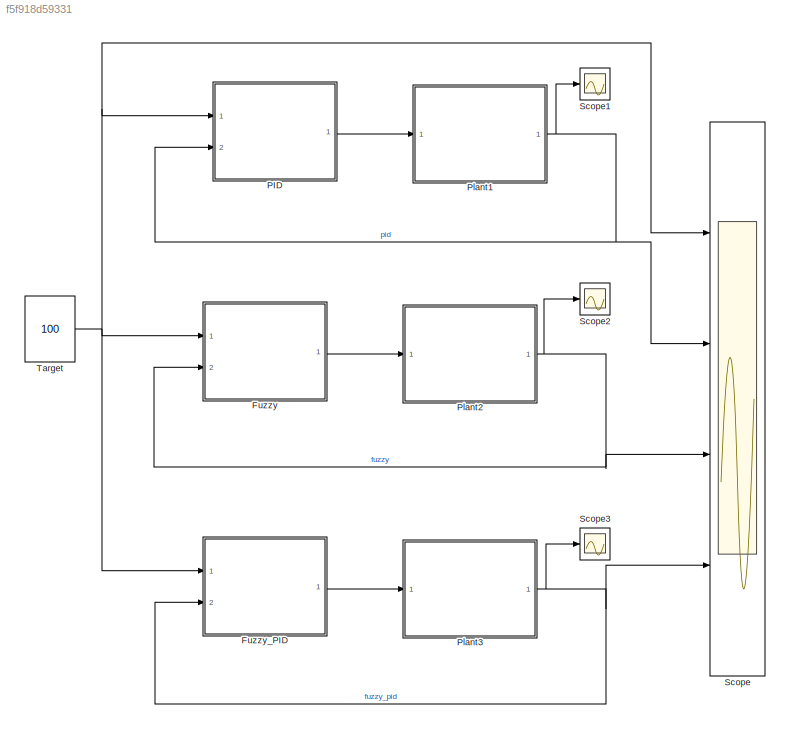
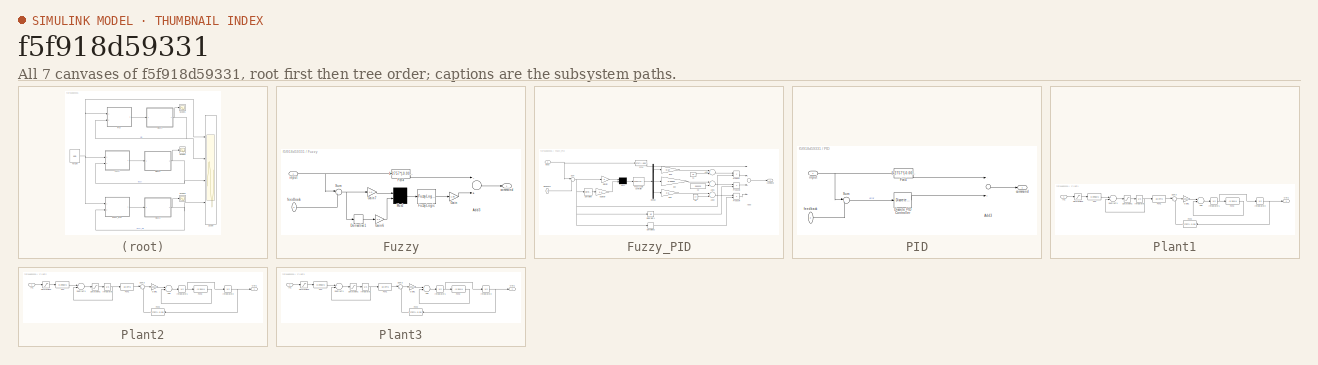
[diagram: thumbnail index - all 7 canvases of the model, root first then tree order]
MODEL slx_f5f918d59331
KIND model
CONFIG AbsTol = auto
CONFIG EnableMultiTasking = on
CONFIG FixedStep = auto
CONFIG MaxStep = auto
CONFIG MinStep = auto
CONFIG PreLoadFcn = mohu=readfis('mohu.fis');\nlakj=readfis('lakj.fis');
CONFIG RelTol = 1e-3
CONFIG SampleTimeConstraint = Unconstrained
CONFIG Solver = ode45
CONFIG SolverName = ode45
CONFIG StartTime = 0.0
CONFIG StopTime = 150
BLOCK [SubSystem] Fuzzy
  Ports = [2, 1]
  RequestExecContextInheritance = off
  Variant = off
BLOCK [Sum] Fuzzy/Add3
  InputSameDT = off
  Inputs = -+
  OutDataTypeStr = Inherit: Inherit via internal rule
  Ports = [2, 1]
  SaturateOnIntegerOverflow = off
BLOCK [Derivative] Fuzzy/Derivative1
BLOCK [Fcn] Fuzzy/Fcn4
  Expr = 1.2757*(-0.0003*u^2+0.1401*u-0.1236)+2.4164e-6*(10278*u-35310)-3.9398e-4*(-0.0003*u^2+0.1401*u-0.1236)^2-1.9519e-15*(10278*u-35310)^2+1.0422e4*(-1e-12*u^4+1e-9*u^3-3e-7*u^2+3e-5*u-3e-5)
BLOCK [Reference] Fuzzy/Fuzzy Logic   REF=fuzblock/Fuzzy Logic   (lib defined in mdl_858b3b3e7478)
Controller
  Ports = [1, 1]
  SourceBlock = fuzblock/Fuzzy Logic \nController
  SourceType = FIS
BLOCK [Gain] Fuzzy/Gain
  Gain = 1.36
  OutDataTypeStr = Inherit: Inherit via internal rule
  ParamDataTypeStr = Inherit: Inherit via internal rule
  SaturateOnIntegerOverflow = off
BLOCK [Gain] Fuzzy/Gain6
  Gain = 1.4
  OutDataTypeStr = Inherit: Inherit via internal rule
  ParamDataTypeStr = Inherit: Inherit via internal rule
  SaturateOnIntegerOverflow = off
BLOCK [Gain] Fuzzy/Gain7
  Gain = 1.0
  OutDataTypeStr = Inherit: Inherit via internal rule
  ParamDataTypeStr = Inherit: Inherit via internal rule
  SaturateOnIntegerOverflow = off
BLOCK [Mux] Fuzzy/Mux2
  Inputs = 2
  Ports = [2, 1]
BLOCK [Sum] Fuzzy/Sum
  IconShape = round
  InputSameDT = off
  Inputs = |+-
  OutDataTypeStr = Inherit: Inherit via internal rule
  Ports = [2, 1]
  SaturateOnIntegerOverflow = off
BLOCK [Outport] Fuzzy/commond 
  IconDisplay = Port number
BLOCK [Inport] Fuzzy/feedback
  IconDisplay = Port number
  Port = 2
BLOCK [Inport] Fuzzy/input
  IconDisplay = Port number
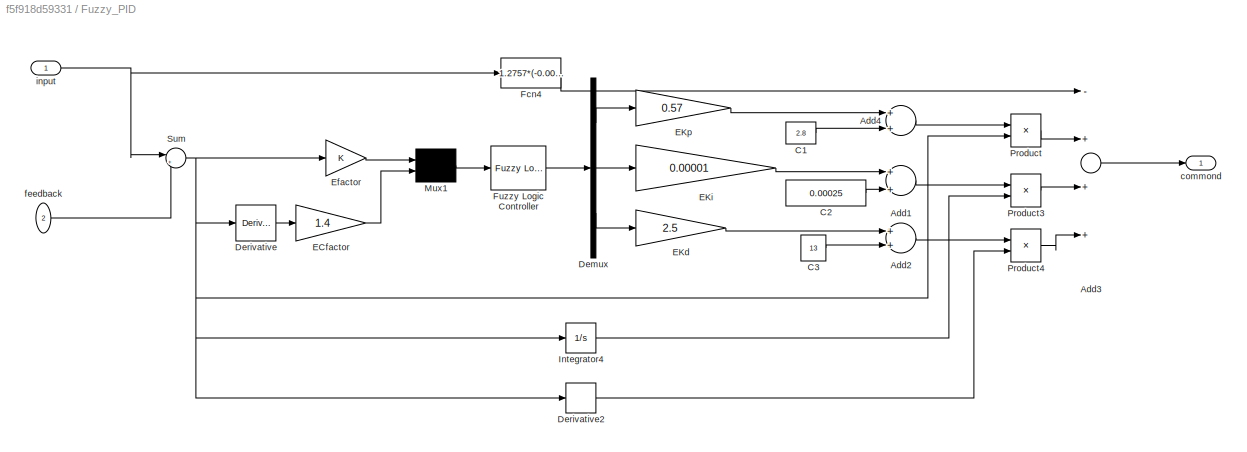
BLOCK [SubSystem] Fuzzy_PID
  Ports = [2, 1]
  RequestExecContextInheritance = off
  Variant = off
BLOCK [Sum] Fuzzy_PID/Add1
  InputSameDT = off
  OutDataTypeStr = Inherit: Inherit via internal rule
  Ports = [2, 1]
  SaturateOnIntegerOverflow = off
BLOCK [Sum] Fuzzy_PID/Add2
  InputSameDT = off
  OutDataTypeStr = Inherit: Inherit via internal rule
  Ports = [2, 1]
  SaturateOnIntegerOverflow = off
BLOCK [Sum] Fuzzy_PID/Add3
  InputSameDT = off
  Inputs = -+++
  OutDataTypeStr = Inherit: Inherit via internal rule
  Ports = [4, 1]
  SaturateOnIntegerOverflow = off
BLOCK [Sum] Fuzzy_PID/Add4
  InputSameDT = off
  OutDataTypeStr = Inherit: Inherit via internal rule
  Ports = [2, 1]
  SaturateOnIntegerOverflow = off
BLOCK [Constant] Fuzzy_PID/C1
  Value = 2.8
BLOCK [Constant] Fuzzy_PID/C2
  Value = 0.00025
BLOCK [Constant] Fuzzy_PID/C3
  Value = 13
BLOCK [Demux] Fuzzy_PID/Demux
  DisplayOption = bar
  Outputs = 3
  Ports = [1, 3]
BLOCK [Derivative] Fuzzy_PID/Derivative
BLOCK [Derivative] Fuzzy_PID/Derivative2
BLOCK [Gain] Fuzzy_PID/ECfactor
  Gain = 1.4
  OutDataTypeStr = Inherit: Inherit via internal rule
  ParamDataTypeStr = Inherit: Inherit via internal rule
  SaturateOnIntegerOverflow = off
BLOCK [Gain] Fuzzy_PID/EKd
  Gain = 2.5
  OutDataTypeStr = Inherit: Inherit via internal rule
  ParamDataTypeStr = Inherit: Inherit via internal rule
  SaturateOnIntegerOverflow = off
BLOCK [Gain] Fuzzy_PID/EKi
  Gain = 0.00001
  OutDataTypeStr = Inherit: Inherit via internal rule
  ParamDataTypeStr = Inherit: Inherit via internal rule
  SaturateOnIntegerOverflow = off
BLOCK [Gain] Fuzzy_PID/EKp
  Gain = 0.57
  OutDataTypeStr = Inherit: Inherit via internal rule
  ParamDataTypeStr = Inherit: Inherit via internal rule
  SaturateOnIntegerOverflow = off
BLOCK [Gain] Fuzzy_PID/Efactor
  OutDataTypeStr = Inherit: Inherit via internal rule
  ParamDataTypeStr = Inherit: Inherit via internal rule
  SaturateOnIntegerOverflow = off
BLOCK [Fcn] Fuzzy_PID/Fcn4
  Expr = 1.2757*(-0.0003*u^2+0.1401*u-0.1236)+2.4164e-6*(10278*u-35310)-3.9398e-4*(-0.0003*u^2+0.1401*u-0.1236)^2-1.9519e-15*(10278*u-35310)^2+1.0422e4*(-1e-12*u^4+1e-9*u^3-3e-7*u^2+3e-5*u-3e-5)
BLOCK [Reference] Fuzzy_PID/Fuzzy Logic Controller  REF=fuzblock/Fuzzy Logic   (lib defined in mdl_858b3b3e7478)
Controller
  Ports = [1, 1]
  SourceBlock = fuzblock/Fuzzy Logic \nController
  SourceType = FIS
BLOCK [Integrator] Fuzzy_PID/Integrator4
  Ports = [1, 1]
BLOCK [Mux] Fuzzy_PID/Mux1
  Inputs = 2
  Ports = [2, 1]
BLOCK [Product] Fuzzy_PID/Product
  InputSameDT = off
  OutDataTypeStr = Inherit: Inherit via internal rule
  Ports = [2, 1]
  SaturateOnIntegerOverflow = off
BLOCK [Product] Fuzzy_PID/Product3
  InputSameDT = off
  OutDataTypeStr = Inherit: Inherit via internal rule
  Ports = [2, 1]
  SaturateOnIntegerOverflow = off
BLOCK [Product] Fuzzy_PID/Product4
  InputSameDT = off
  OutDataTypeStr = Inherit: Inherit via internal rule
  Ports = [2, 1]
  SaturateOnIntegerOverflow = off
BLOCK [Sum] Fuzzy_PID/Sum
  IconShape = round
  InputSameDT = off
  Inputs = |+-
  OutDataTypeStr = Inherit: Inherit via internal rule
  Ports = [2, 1]
  SaturateOnIntegerOverflow = off
BLOCK [Outport] Fuzzy_PID/commond 
  IconDisplay = Port number
BLOCK [Inport] Fuzzy_PID/feedback
  IconDisplay = Port number
  Port = 2
BLOCK [Inport] Fuzzy_PID/input
  IconDisplay = Port number
BLOCK [SubSystem] PID
  Ports = [2, 1]
  RequestExecContextInheritance = off
  Variant = off
BLOCK [Sum] PID/Add3
  InputSameDT = off
  Inputs = -+
  OutDataTypeStr = Inherit: Inherit via internal rule
  Ports = [2, 1]
  SaturateOnIntegerOverflow = off
BLOCK [Reference] PID/Discrete PID Controller  REF=powerlib_extras/Discrete 
Control Blocks/Discrete
PID Controller
  Ports = [1, 1]
  SourceBlock = powerlib_extras/Discrete \nControl Blocks/Discrete\nPID Controller
  SourceType = Discrete PID Controller
BLOCK [Fcn] PID/Fcn4
  Expr = 1.2757*(-0.0003*u^2+0.1401*u-0.1236)+2.4164e-6*(10278*u-35310)-3.9398e-4*(-0.0003*u^2+0.1401*u-0.1236)^2-1.9519e-15*(10278*u-35310)^2+1.0422e4*(-1e-12*u^4+1e-9*u^3-3e-7*u^2+3e-5*u-3e-5)
BLOCK [Sum] PID/Sum
  IconShape = round
  InputSameDT = off
  Inputs = |+-
  OutDataTypeStr = Inherit: Inherit via internal rule
  Ports = [2, 1]
  SaturateOnIntegerOverflow = off
BLOCK [Outport] PID/commond 
  IconDisplay = Port number
BLOCK [Inport] PID/feedback
  IconDisplay = Port number
  Port = 2
BLOCK [Inport] PID/input
  IconDisplay = Port number
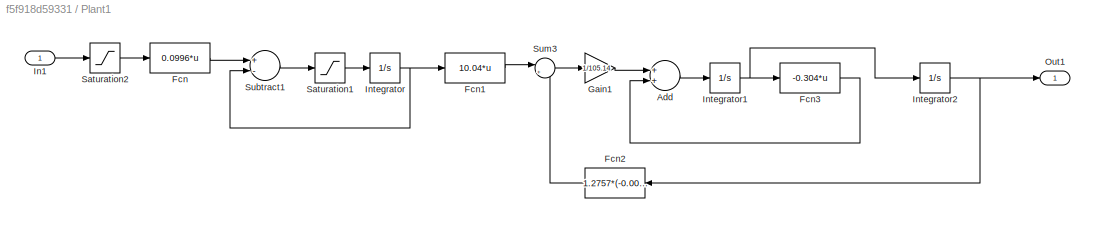
BLOCK [SubSystem] Plant1
  Ports = [1, 1]
  RequestExecContextInheritance = off
  Variant = off
BLOCK [Sum] Plant1/Add
  InputSameDT = off
  OutDataTypeStr = Inherit: Inherit via internal rule
  Ports = [2, 1]
  SaturateOnIntegerOverflow = off
BLOCK [Fcn] Plant1/Fcn
  Expr = 0.0996*u
BLOCK [Fcn] Plant1/Fcn1
  Expr = 10.04*u
BLOCK [Fcn] Plant1/Fcn2
  Expr = 1.2757*(-0.0003*u^2+0.1401*u-0.1236)+2.4164e-6*(10278*u-35310)-3.9398e-4*(-0.0003*u^2+0.1401*u-0.1236)^2-1.9519e-15*(10278*u-35310)^2+1.0422e4*(-1e-12*u^4+1e-9*u^3-3e-7*u^2+3e-5*u-3e-5)
BLOCK [Fcn] Plant1/Fcn3
  Expr = -0.304*u
BLOCK [Gain] Plant1/Gain1
  Gain = 1/105.14
  OutDataTypeStr = Inherit: Inherit via internal rule
  ParamDataTypeStr = Inherit: Inherit via internal rule
  SaturateOnIntegerOverflow = off
BLOCK [Inport] Plant1/In1
  IconDisplay = Port number
BLOCK [Integrator] Plant1/Integrator
  Ports = [1, 1]
BLOCK [Integrator] Plant1/Integrator1
  Ports = [1, 1]
BLOCK [Integrator] Plant1/Integrator2
  InitialCondition = 90
  Ports = [1, 1]
BLOCK [Outport] Plant1/Out1
  IconDisplay = Port number
BLOCK [Saturate] Plant1/Saturation1
  InputPortMap = u0
  LowerLimit = -0.167
  Ports = [1, 1]
  UpperLimit = 0.167
BLOCK [Saturate] Plant1/Saturation2
  InputPortMap = u0
  LowerLimit = -80.36
  Ports = [1, 1]
  UpperLimit = 80.36
BLOCK [Sum] Plant1/Subtract1
  InputSameDT = off
  Inputs = +-
  OutDataTypeStr = Inherit: Inherit via internal rule
  Ports = [2, 1]
  SaturateOnIntegerOverflow = off
BLOCK [Sum] Plant1/Sum3
  IconShape = round
  InputSameDT = off
  Inputs = |++
  OutDataTypeStr = Inherit: Inherit via internal rule
  Ports = [2, 1]
  SaturateOnIntegerOverflow = off
BLOCK [SubSystem] Plant2
  Ports = [1, 1]
  RequestExecContextInheritance = off
  Variant = off
BLOCK [Sum] Plant2/Add
  InputSameDT = off
  OutDataTypeStr = Inherit: Inherit via internal rule
  Ports = [2, 1]
  SaturateOnIntegerOverflow = off
BLOCK [Fcn] Plant2/Fcn
  Expr = 0.0996*u
BLOCK [Fcn] Plant2/Fcn1
  Expr = 10.04*u
BLOCK [Fcn] Plant2/Fcn2
  Expr = 1.2757*(-0.0003*u^2+0.1401*u-0.1236)+2.4164e-6*(10278*u-35310)-3.9398e-4*(-0.0003*u^2+0.1401*u-0.1236)^2-1.9519e-15*(10278*u-35310)^2+1.0422e4*(-1e-12*u^4+1e-9*u^3-3e-7*u^2+3e-5*u-3e-5)
BLOCK [Fcn] Plant2/Fcn3
  Expr = -0.304*u
BLOCK [Gain] Plant2/Gain1
  Gain = 1/105.14
  OutDataTypeStr = Inherit: Inherit via internal rule
  ParamDataTypeStr = Inherit: Inherit via internal rule
  SaturateOnIntegerOverflow = off
BLOCK [Inport] Plant2/In1
  IconDisplay = Port number
BLOCK [Integrator] Plant2/Integrator
  Ports = [1, 1]
BLOCK [Integrator] Plant2/Integrator1
  Ports = [1, 1]
BLOCK [Integrator] Plant2/Integrator2
  InitialCondition = 90
  Ports = [1, 1]
BLOCK [Outport] Plant2/Out1
  IconDisplay = Port number
BLOCK [Saturate] Plant2/Saturation1
  InputPortMap = u0
  LowerLimit = -0.167
  Ports = [1, 1]
  UpperLimit = 0.167
BLOCK [Saturate] Plant2/Saturation2
  InputPortMap = u0
  LowerLimit = -80.36
  Ports = [1, 1]
  UpperLimit = 80.36
BLOCK [Sum] Plant2/Subtract1
  InputSameDT = off
  Inputs = +-
  OutDataTypeStr = Inherit: Inherit via internal rule
  Ports = [2, 1]
  SaturateOnIntegerOverflow = off
BLOCK [Sum] Plant2/Sum3
  IconShape = round
  InputSameDT = off
  Inputs = |++
  OutDataTypeStr = Inherit: Inherit via internal rule
  Ports = [2, 1]
  SaturateOnIntegerOverflow = off
BLOCK [SubSystem] Plant3
  Ports = [1, 1]
  RequestExecContextInheritance = off
  Variant = off
BLOCK [Sum] Plant3/Add
  InputSameDT = off
  OutDataTypeStr = Inherit: Inherit via internal rule
  Ports = [2, 1]
  SaturateOnIntegerOverflow = off
BLOCK [Fcn] Plant3/Fcn
  Expr = 0.0996*u
BLOCK [Fcn] Plant3/Fcn1
  Expr = 10.04*u
BLOCK [Fcn] Plant3/Fcn2
  Expr = 1.2757*(-0.0003*u^2+0.1401*u-0.1236)+2.4164e-6*(10278*u-35310)-3.9398e-4*(-0.0003*u^2+0.1401*u-0.1236)^2-1.9519e-15*(10278*u-35310)^2+1.0422e4*(-1e-12*u^4+1e-9*u^3-3e-7*u^2+3e-5*u-3e-5)
BLOCK [Fcn] Plant3/Fcn3
  Expr = -0.304*u
BLOCK [Gain] Plant3/Gain1
  Gain = 1/105.14
  OutDataTypeStr = Inherit: Inherit via internal rule
  ParamDataTypeStr = Inherit: Inherit via internal rule
  SaturateOnIntegerOverflow = off
BLOCK [Inport] Plant3/In1
  IconDisplay = Port number
BLOCK [Integrator] Plant3/Integrator
  Ports = [1, 1]
BLOCK [Integrator] Plant3/Integrator1
  Ports = [1, 1]
BLOCK [Integrator] Plant3/Integrator2
  InitialCondition = 90
  Ports = [1, 1]
BLOCK [Outport] Plant3/Out1
  IconDisplay = Port number
BLOCK [Saturate] Plant3/Saturation1
  InputPortMap = u0
  LowerLimit = -0.167
  Ports = [1, 1]
  UpperLimit = 0.167
BLOCK [Saturate] Plant3/Saturation2
  InputPortMap = u0
  LowerLimit = -80.36
  Ports = [1, 1]
  UpperLimit = 80.36
BLOCK [Sum] Plant3/Subtract1
  InputSameDT = off
  Inputs = +-
  OutDataTypeStr = Inherit: Inherit via internal rule
  Ports = [2, 1]
  SaturateOnIntegerOverflow = off
BLOCK [Sum] Plant3/Sum3
  IconShape = round
  InputSameDT = off
  Inputs = |++
  OutDataTypeStr = Inherit: Inherit via internal rule
  Ports = [2, 1]
  SaturateOnIntegerOverflow = off
BLOCK [Scope] Scope
  NumInputPorts = 4
  Ports = [4]
  ScopeSpecificationString = Simulink.scopes.TimeScopeBlockCfg('CurrentConfiguration', extmgr.ConfigurationSet(extmgr.Configuration('Core','General UI',true,'FigureColor',[1 1 1]),extmgr.Configuration('Core','Source UI',true),extmgr.Configuration('Sources','WiredSimulink',true,'DataLoggingVariableName','ScopeData1','DataLoggingSaveFormat','StructureWithTime','DataLoggingDecimation','1','DataLoggingDecimateData',true),extmgr.C...<+2346ch>
BLOCK [Scope] Scope1
  NumInputPorts = 1
  Ports = [1]
  ScopeSpecificationString = Simulink.scopes.TimeScopeBlockCfg('CurrentConfiguration', extmgr.ConfigurationSet(extmgr.Configuration('Core','General UI',true),extmgr.Configuration('Core','Source UI',true),extmgr.Configuration('Sources','WiredSimulink',true,'DataLoggingVariableName','ScopeData1','DataLoggingLimitDataPoints',true,'DataLoggingSaveFormat','Array','DataLoggingDecimation','1','DataLoggingDecimateData',true),extmgr.C...<+1497ch>
BLOCK [Scope] Scope2
  NumInputPorts = 1
  Ports = [1]
  ScopeSpecificationString = Simulink.scopes.TimeScopeBlockCfg('CurrentConfiguration', extmgr.ConfigurationSet(extmgr.Configuration('Core','General UI',true),extmgr.Configuration('Core','Source UI',true),extmgr.Configuration('Sources','WiredSimulink',true,'DataLoggingVariableName','ScopeData2'),extmgr.Configuration('Visuals','Time Domain',true,'SerializedDisplays',{struct('MinYLimReal','88.75','MaxYLimReal','101.25004','YLabe...<+1362ch>
BLOCK [Scope] Scope3
  NumInputPorts = 1
  Ports = [1]
  ScopeSpecificationString = Simulink.scopes.TimeScopeBlockCfg('CurrentConfiguration', extmgr.ConfigurationSet(extmgr.Configuration('Core','General UI',true),extmgr.Configuration('Core','Source UI',true),extmgr.Configuration('Sources','WiredSimulink',true,'DataLoggingVariableName','ScopeData3','DataLoggingLimitDataPoints',true,'DataLoggingSaveFormat','Array','DataLoggingDecimation','1','DataLoggingDecimateData',true),extmgr.C...<+1503ch>
BLOCK [Constant] Target
  Value = 100
LINE Fuzzy/Add3:1 -> Fuzzy/commond :1
LINE Fuzzy/Derivative1:1 -> Fuzzy/Gain6:1
LINE Fuzzy/Fcn4:1 -> Fuzzy/Add3:1
LINE Fuzzy/Fuzzy Logic :1 -> Fuzzy/Gain:1
LINE Fuzzy/Gain6:1 -> Fuzzy/Mux2:2
LINE Fuzzy/Gain7:1 -> Fuzzy/Mux2:1
LINE Fuzzy/Gain:1 -> Fuzzy/Add3:2
LINE Fuzzy/Mux2:1 -> Fuzzy/Fuzzy Logic :1
NET Fuzzy/Sum:1 -> Fuzzy/Derivative1:1, Fuzzy/Gain7:1
LINE Fuzzy/feedback:1 -> Fuzzy/Sum:2
NET Fuzzy/input:1 -> Fuzzy/Fcn4:1, Fuzzy/Sum:1
LINE Fuzzy:1 -> Plant2:1
LINE Fuzzy_PID/Add1:1 -> Fuzzy_PID/Product3:1
LINE Fuzzy_PID/Add2:1 -> Fuzzy_PID/Product4:1
LINE Fuzzy_PID/Add3:1 -> Fuzzy_PID/commond :1
LINE Fuzzy_PID/Add4:1 -> Fuzzy_PID/Product:1
LINE Fuzzy_PID/C1:1 -> Fuzzy_PID/Add4:2
LINE Fuzzy_PID/C2:1 -> Fuzzy_PID/Add1:2
LINE Fuzzy_PID/C3:1 -> Fuzzy_PID/Add2:2
LINE Fuzzy_PID/Demux:1 -> Fuzzy_PID/EKp:1
LINE Fuzzy_PID/Demux:2 -> Fuzzy_PID/EKi:1
LINE Fuzzy_PID/Demux:3 -> Fuzzy_PID/EKd:1
LINE Fuzzy_PID/Derivative2:1 -> Fuzzy_PID/Product4:2
LINE Fuzzy_PID/Derivative:1 -> Fuzzy_PID/ECfactor:1
LINE Fuzzy_PID/ECfactor:1 -> Fuzzy_PID/Mux1:2
LINE Fuzzy_PID/EKd:1 -> Fuzzy_PID/Add2:1
LINE Fuzzy_PID/EKi:1 -> Fuzzy_PID/Add1:1
LINE Fuzzy_PID/EKp:1 -> Fuzzy_PID/Add4:1
LINE Fuzzy_PID/Efactor:1 -> Fuzzy_PID/Mux1:1
LINE Fuzzy_PID/Fcn4:1 -> Fuzzy_PID/Add3:1
LINE Fuzzy_PID/Fuzzy Logic Controller:1 -> Fuzzy_PID/Demux:1
LINE Fuzzy_PID/Integrator4:1 -> Fuzzy_PID/Product3:2
LINE Fuzzy_PID/Mux1:1 -> Fuzzy_PID/Fuzzy Logic Controller:1
LINE Fuzzy_PID/Product3:1 -> Fuzzy_PID/Add3:3
LINE Fuzzy_PID/Product4:1 -> Fuzzy_PID/Add3:4
LINE Fuzzy_PID/Product:1 -> Fuzzy_PID/Add3:2
NET Fuzzy_PID/Sum:1 -> Fuzzy_PID/Derivative2:1, Fuzzy_PID/Derivative:1, Fuzzy_PID/Efactor:1, Fuzzy_PID/Integrator4:1, Fuzzy_PID/Product:2
LINE Fuzzy_PID/feedback:1 -> Fuzzy_PID/Sum:2
NET Fuzzy_PID/input:1 -> Fuzzy_PID/Fcn4:1, Fuzzy_PID/Sum:1
LINE Fuzzy_PID:1 -> Plant3:1
LINE PID/Add3:1 -> PID/commond :1
LINE PID/Discrete PID Controller:1 -> PID/Add3:2
LINE PID/Fcn4:1 -> PID/Add3:1
LINE PID/Sum:1 -> PID/Discrete PID Controller:1
LINE PID/feedback:1 -> PID/Sum:2
NET PID/input:1 -> PID/Fcn4:1, PID/Sum:1
LINE PID:1 -> Plant1:1
LINE Plant1/Add:1 -> Plant1/Integrator1:1
LINE Plant1/Fcn1:1 -> Plant1/Sum3:1
LINE Plant1/Fcn2:1 -> Plant1/Sum3:2
LINE Plant1/Fcn3:1 -> Plant1/Add:2
LINE Plant1/Fcn:1 -> Plant1/Subtract1:1
LINE Plant1/Gain1:1 -> Plant1/Add:1
LINE Plant1/In1:1 -> Plant1/Saturation2:1
NET Plant1/Integrator1:1 -> Plant1/Fcn3:1, Plant1/Integrator2:1
NET Plant1/Integrator2:1 -> Plant1/Fcn2:1, Plant1/Out1:1
NET Plant1/Integrator:1 -> Plant1/Fcn1:1, Plant1/Subtract1:2
LINE Plant1/Saturation1:1 -> Plant1/Integrator:1
LINE Plant1/Saturation2:1 -> Plant1/Fcn:1
LINE Plant1/Subtract1:1 -> Plant1/Saturation1:1
LINE Plant1/Sum3:1 -> Plant1/Gain1:1
NET Plant1:1 -> PID:2, Scope1:1, Scope:2
LINE Plant2/Add:1 -> Plant2/Integrator1:1
LINE Plant2/Fcn1:1 -> Plant2/Sum3:1
LINE Plant2/Fcn2:1 -> Plant2/Sum3:2
LINE Plant2/Fcn3:1 -> Plant2/Add:2
LINE Plant2/Fcn:1 -> Plant2/Subtract1:1
LINE Plant2/Gain1:1 -> Plant2/Add:1
LINE Plant2/In1:1 -> Plant2/Saturation2:1
NET Plant2/Integrator1:1 -> Plant2/Fcn3:1, Plant2/Integrator2:1
NET Plant2/Integrator2:1 -> Plant2/Fcn2:1, Plant2/Out1:1
NET Plant2/Integrator:1 -> Plant2/Fcn1:1, Plant2/Subtract1:2
LINE Plant2/Saturation1:1 -> Plant2/Integrator:1
LINE Plant2/Saturation2:1 -> Plant2/Fcn:1
LINE Plant2/Subtract1:1 -> Plant2/Saturation1:1
LINE Plant2/Sum3:1 -> Plant2/Gain1:1
NET Plant2:1 -> Fuzzy:2, Scope2:1, Scope:3
LINE Plant3/Add:1 -> Plant3/Integrator1:1
LINE Plant3/Fcn1:1 -> Plant3/Sum3:1
LINE Plant3/Fcn2:1 -> Plant3/Sum3:2
LINE Plant3/Fcn3:1 -> Plant3/Add:2
LINE Plant3/Fcn:1 -> Plant3/Subtract1:1
LINE Plant3/Gain1:1 -> Plant3/Add:1
LINE Plant3/In1:1 -> Plant3/Saturation2:1
NET Plant3/Integrator1:1 -> Plant3/Fcn3:1, Plant3/Integrator2:1
NET Plant3/Integrator2:1 -> Plant3/Fcn2:1, Plant3/Out1:1
NET Plant3/Integrator:1 -> Plant3/Fcn1:1, Plant3/Subtract1:2
LINE Plant3/Saturation1:1 -> Plant3/Integrator:1
LINE Plant3/Saturation2:1 -> Plant3/Fcn:1
LINE Plant3/Subtract1:1 -> Plant3/Saturation1:1
LINE Plant3/Sum3:1 -> Plant3/Gain1:1
NET Plant3:1 -> Fuzzy_PID:2, Scope3:1, Scope:4
NET Target:1 -> Fuzzy:1, Fuzzy_PID:1, PID:1, Scope:1
note: NET lines group one-source signal fan-out (src -> all destinations, sorted); 1:1 wires keep LINE
